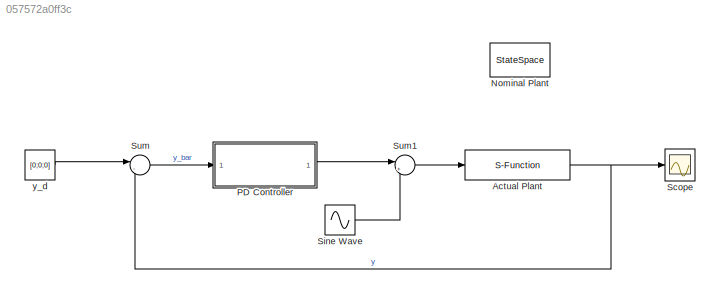
MODEL slx_057572a0ff3c
KIND model
CONFIG AbsTol = auto
CONFIG EnableMultiTasking = off
CONFIG FixedStep = auto
CONFIG MaxStep = auto
CONFIG MinStep = auto
CONFIG RelTol = 1e-3
CONFIG SampleTimeConstraint = Unconstrained
CONFIG SolverName = VariableStepAuto
CONFIG StartTime = 0.0
CONFIG StopTime = 10.0
BLOCK [S-Function] Actual Plant
  EnableBusSupport = off
  FunctionName = sfunction_actual
  SFcnIsStateOwnerBlock = off
  SFunctionDeploymentMode = off
  SFunctionModules = 'sfunction_actual'
BLOCK [StateSpace] Nominal Plant
  A = A_n
  B = B_n
  C = C_n
  D = zeros(3,3)
  InitialCondition = [0 0 0 0 0 0 1 1 1 0 0 0 0 0]
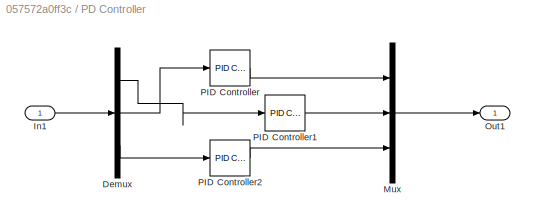
BLOCK [SubSystem] PD Controller
BLOCK [Demux] PD Controller/Demux
  Outputs = 3
BLOCK [Inport] PD Controller/In1
BLOCK [Mux] PD Controller/Mux
  DisplayOption = bar
  Inputs = 3
BLOCK [Outport] PD Controller/Out1
BLOCK [Reference] PD Controller/PID Controller  REF=slpidlib/PID Controller
  LibrarySourceBlock = simulink/Continuous/PID Controller
  SourceBlock = slpidlib/PID Controller
  SourceType = PID 1dof
BLOCK [Reference] PD Controller/PID Controller1  REF=slpidlib/PID Controller
  LibrarySourceBlock = simulink/Continuous/PID Controller
  SourceBlock = slpidlib/PID Controller
  SourceType = PID 1dof
BLOCK [Reference] PD Controller/PID Controller2  REF=slpidlib/PID Controller
  LibrarySourceBlock = simulink/Continuous/PID Controller
  SourceBlock = slpidlib/PID Controller
  SourceType = PID 1dof
BLOCK [Scope] Scope
  Floating = off
  NumInputPorts = 1
  ScopeSpecificationString = Simulink.scopes.TimeScopeBlockCfg('CurrentConfiguration', extmgr.ConfigurationSet(extmgr.Configuration('Core','General UI',true),extmgr.Configuration('Core','Source UI',true),extmgr.Configuration('Sources','WiredSimulink',true),extmgr.Configuration('Visuals','Time Domain',true,'SerializedDisplays',{struct('MinYLimReal','-1.97593','MaxYLimReal','1.4537','YLabelReal','','MinYLimMag','0.00000','MaxYL...<+1408ch>
BLOCK [Sin] Sine Wave
  Amplitude = [1;1;1]
  Frequency = 100
  SampleTime = 0
BLOCK [Sum] Sum
  Inputs = |-+
BLOCK [Sum] Sum1
  Inputs = |++
BLOCK [Constant] y_d
  Value = [0;0;0]
NET Actual Plant:1 -> Scope:1, Sum:2
LINE PD Controller/Demux:1 -> PD Controller/PID Controller1:1
LINE PD Controller/Demux:2 -> PD Controller/PID Controller:1
LINE PD Controller/Demux:3 -> PD Controller/PID Controller2:1
LINE PD Controller/In1:1 -> PD Controller/Demux:1
LINE PD Controller/Mux:1 -> PD Controller/Out1:1
LINE PD Controller/PID Controller1:1 -> PD Controller/Mux:2
LINE PD Controller/PID Controller2:1 -> PD Controller/Mux:3
LINE PD Controller/PID Controller:1 -> PD Controller/Mux:1
LINE PD Controller:1 -> Sum1:1
LINE Sine Wave:1 -> Sum1:2
LINE Sum1:1 -> Actual Plant:1
LINE Sum:1 -> PD Controller:1
LINE y_d:1 -> Sum:1
note: NET lines group one-source signal fan-out (src -> all destinations, sorted); 1:1 wires keep LINE
